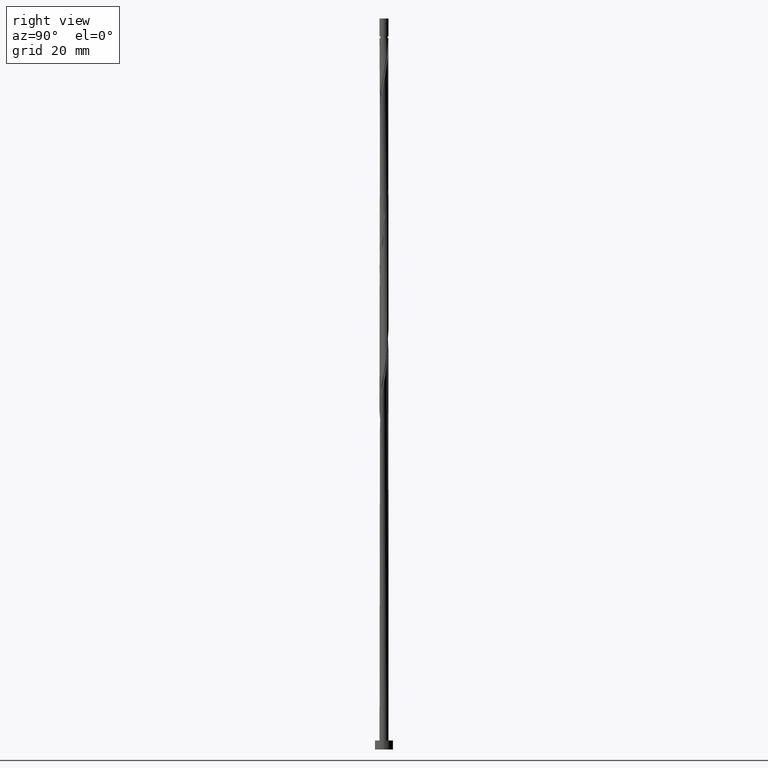
[diagram: clean part render]
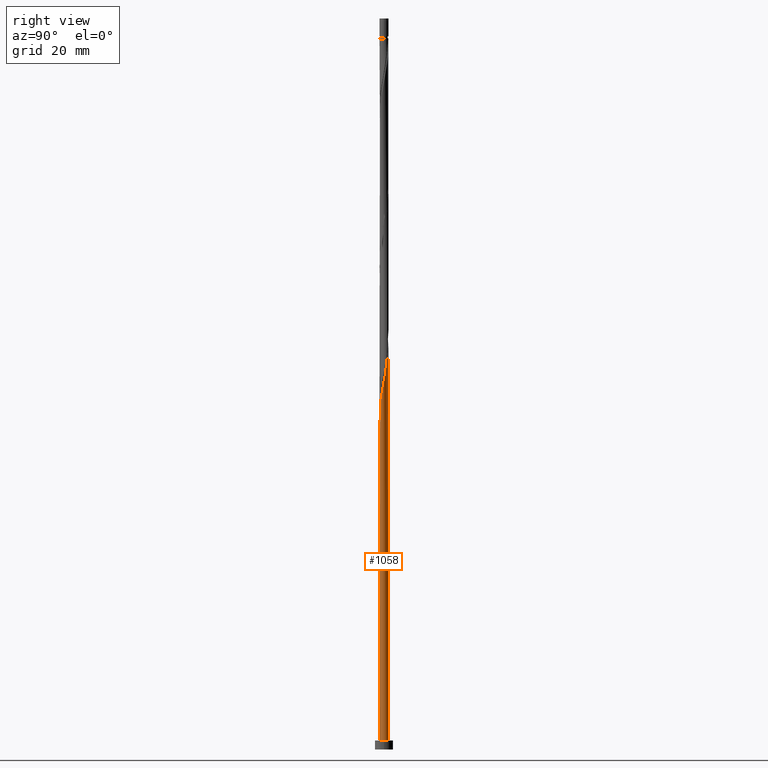
[diagram: same view with one face highlighted and labeled with its STEP entity id]
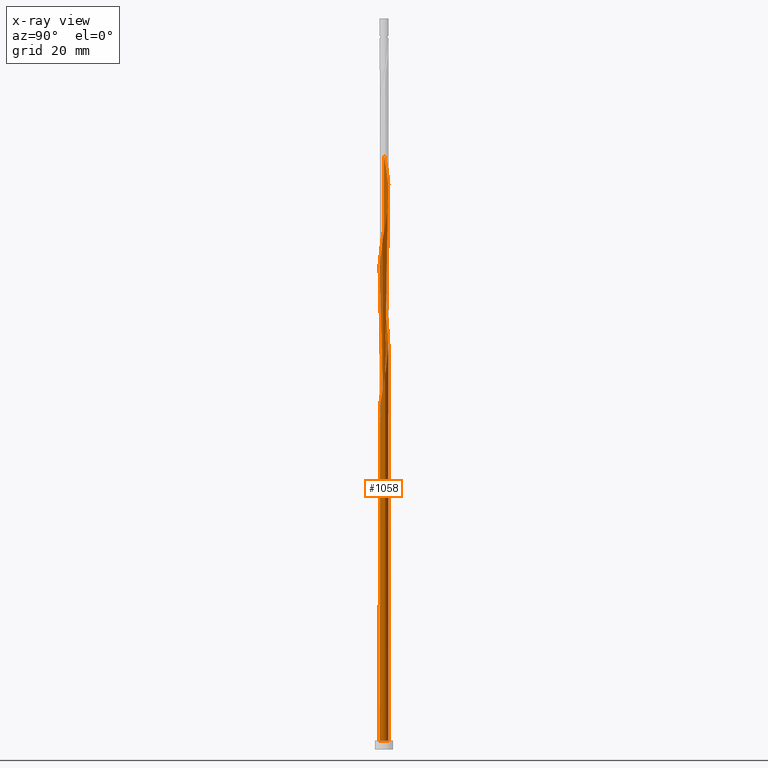
[diagram: x-ray of the same camera — body ghosted, the highlighted face saturated]
A machine part, right view. The second image highlights one B-rep face of the part: STEP entity #1058.
The next image is the same camera in x-ray: the body ghosted, the highlighted face saturated — about 0% of this face is hidden behind the body in this view.
In plain terms, the highlighted cylindrical surface (bore or boss wall) has radius 1 mm, axis along (-0, -0, -1).
Its self-contained STEP definition (entity closure, byte-faithful):
#1 = CARTESIAN_POINT ( 'NONE',  ( -0.4458594766673660836, 0.8951029700910976272, 92.36037733093021984 ) ) ;
#8 = CARTESIAN_POINT ( 'NONE',  ( 0.6623368793961451617, -0.7492061519980853790, 110.4159328864857628 ) ) ;
#15 = CYLINDRICAL_SURFACE ( 'NONE', #1018, 1.000000000000000000 ) ;
#17 = CARTESIAN_POINT ( 'NONE',  ( -0.06997803978568012395, 1.006198516232634566, 90.27704399759687703 ) ) ;
#31 = CARTESIAN_POINT ( 'NONE',  ( -1.000000000000000000, 0.000000000000000000, 2.000000000000000000 ) ) ;
#55 = CARTESIAN_POINT ( 'NONE',  ( -0.1989974874213289724, 0.9799999999999999822, 57.63815510870801262 ) ) ;
#102 = CARTESIAN_POINT ( 'NONE',  ( -1.000000000000000000, 0.000000000000000000, 162.0000000000000000 ) ) ;
#114 = CARTESIAN_POINT ( 'NONE',  ( -0.06142585173357485023, -0.9981116494354761448, 72.91593288648579119 ) ) ;
#121 = CARTESIAN_POINT ( 'NONE',  ( -0.1928297432528305599, -0.9900247826383185012, 72.22148844204133411 ) ) ;
#127 = CARTESIAN_POINT ( 'NONE',  ( -0.8364044564148299665, 0.5637020182777556787, 63.88815510870801972 ) ) ;
#128 = CARTESIAN_POINT ( 'NONE',  ( 0.5637020182777549016, -0.8364044564148300775, 109.7214884420413483 ) ) ;
#136 = CARTESIAN_POINT ( 'NONE',  ( -0.6620078475813414576, -0.7609717405145353109, 102.7770439975968912 ) ) ;
#144 = CARTESIAN_POINT ( 'NONE',  ( 0.06997803978568077621, -1.006198516232634566, 73.61037733093021984 ) ) ;
#158 = ORIENTED_EDGE ( 'NONE', *, *, #1098, .T. ) ;
#172 = CARTESIAN_POINT ( 'NONE',  ( 0.1928297432528310595, 0.9900247826383182792, 122.2214884420413199 ) ) ;
#174 = CIRCLE ( 'NONE', #410, 1.000000000000000000 ) ;
#178 = ORIENTED_EDGE ( 'NONE', *, *, #434, .F. ) ;
#191 = CARTESIAN_POINT ( 'NONE',  ( -0.9482036394194143236, 0.3176631206038548760, 129.8603773309301914 ) ) ;
#197 = ORIENTED_EDGE ( 'NONE', *, *, #981, .T. ) ;
#198 = CARTESIAN_POINT ( 'NONE',  ( -0.9900247826383185012, 0.1928297432528304767, 63.88815510870802683 ) ) ;
#203 = VECTOR ( 'NONE', #955, 1000.000000000000000 ) ;
#205 = CARTESIAN_POINT ( 'NONE',  ( -0.5637020182777554567, 0.8364044564148299665, 59.72148844204136964 ) ) ;
#206 = DIRECTION ( 'NONE',  ( -0.000000000000000000, -0.000000000000000000, -1.000000000000000000 ) ) ;
#219 = ORIENTED_EDGE ( 'NONE', *, *, #1271, .F. ) ;
#229 = DIRECTION ( 'NONE',  ( 1.117039367744582894E-28, -1.734723475976785637E-14, -1.000000000000000000 ) ) ;
#233 = CARTESIAN_POINT ( 'NONE',  ( -0.9063824962005110342, 0.4424964979548792754, 62.49926621981911268 ) ) ;
#239 = DIRECTION ( 'NONE',  ( 0.000000000000000000, 0.000000000000000000, 1.000000000000000000 ) ) ;
#241 = CARTESIAN_POINT ( 'NONE',  ( -0.3176631206038550426, -0.9482036394194143236, 104.8603773309302341 ) ) ;
#247 = CARTESIAN_POINT ( 'NONE',  ( 0.9799999999999999822, 0.1989974874213289169, 82.63815510870801972 ) ) ;
#251 = CARTESIAN_POINT ( 'NONE',  ( -0.4424964979548796640, -0.9063824962005109231, 104.1659328864857912 ) ) ;
#258 = CARTESIAN_POINT ( 'NONE',  ( -0.9538014837673660651, -0.3280169350569769326, 66.66593288648579119 ) ) ;
#265 = ORIENTED_EDGE ( 'NONE', *, *, #580, .F. ) ;
#268 = CARTESIAN_POINT ( 'NONE',  ( -0.8951029700910976272, -0.4458594766673660281, 67.36037733093021984 ) ) ;
#276 = CARTESIAN_POINT ( 'NONE',  ( 0.3176631206038552091, 0.9482036394194142126, 121.5270439975968628 ) ) ;
#283 = CARTESIAN_POINT ( 'NONE',  ( -0.4458594766673660836, 0.8951029700910976272, 125.6937106642635484 ) ) ;
#284 = EDGE_CURVE ( 'NONE', #919, #676, #174, .T. ) ;
#288 = EDGE_LOOP ( 'NONE', ( #178, #1545, #1310, #158, #1318, #265, #219, #197, #907 ) ) ;
#295 = CARTESIAN_POINT ( 'NONE',  ( 0.9981116494354761448, -0.06142585173357540534, 114.5825995531524342 ) ) ;
#331 = LINE ( 'NONE', #1072, #203 ) ;
#349 = CARTESIAN_POINT ( 'NONE',  ( -0.4458594766673660836, 0.8951029700910976272, 59.02704399759688414 ) ) ;
#352 = CARTESIAN_POINT ( 'NONE',  ( 0.000000000000000000, 0.000000000000000000, 2.000000000000000000 ) ) ;
#356 = AXIS2_PLACEMENT_3D ( 'NONE', #471, #229, #589 ) ;
#357 = CARTESIAN_POINT ( 'NONE',  ( -1.000000000000001110, 0.1005037815259254841, 66.50162872806212988 ) ) ;
#364 = CARTESIAN_POINT ( 'NONE',  ( 0.4424964979548797195, 0.9063824962005108121, 87.49926621981910557 ) ) ;
#369 = CARTESIAN_POINT ( 'NONE',  ( 0.06997803978568077621, -1.006198516232634566, 106.9437106642635626 ) ) ;
#373 = CARTESIAN_POINT ( 'NONE',  ( -0.9900247826383185012, 0.1928297432528304767, 97.22148844204134832 ) ) ;
#381 = CARTESIAN_POINT ( 'NONE',  ( -0.5522521727681102277, -0.8336771183575231170, 70.13815510870800551 ) ) ;
#390 = CARTESIAN_POINT ( 'NONE',  ( 0.7492061519980858231, 0.6623368793961449397, 85.41593288648576277 ) ) ;
#410 = AXIS2_PLACEMENT_3D ( 'NONE', #1368, #239, #747 ) ;
#431 = CARTESIAN_POINT ( 'NONE',  ( 0.9799999999999999822, 0.1989974874213289169, 115.9714884420413199 ) ) ;
#434 = EDGE_CURVE ( 'NONE', #1548, #993, #331, .T. ) ;
#438 = CARTESIAN_POINT ( 'NONE',  ( -0.1989974874213288614, 0.9799999999999999822, 124.3048217753746485 ) ) ;
#458 = CARTESIAN_POINT ( 'NONE',  ( -0.1928297432528304767, 0.9900247826383182792, 59.72148844204133411 ) ) ;
#466 = CARTESIAN_POINT ( 'NONE',  ( 0.000000000000000000, 0.000000000000000000, 162.0000000000000000 ) ) ;
#471 = CARTESIAN_POINT ( 'NONE',  ( 0.000000000000000000, 0.000000000000000000, 57.63815510870802683 ) ) ;
#477 = DIRECTION ( 'NONE',  ( 1.000000000000000000, 0.000000000000000000, 0.000000000000000000 ) ) ;
#482 = CARTESIAN_POINT ( 'NONE',  ( -0.7609717405145354219, 0.6620078475813414576, 94.44371066426359107 ) ) ;
#488 = CARTESIAN_POINT ( 'NONE',  ( -0.9482036394194143236, 0.3176631206038548760, 96.52704399759689124 ) ) ;
#494 = CARTESIAN_POINT ( 'NONE',  ( -0.9799999999999999822, -0.1989974874213290001, 99.30482177537466271 ) ) ;
#500 = CIRCLE ( 'NONE', #562, 1.000000000000000000 ) ;
#502 = CARTESIAN_POINT ( 'NONE',  ( 0.1989974874213295275, 0.9800000000000004263, 57.63815510870800551 ) ) ;
#503 = CARTESIAN_POINT ( 'NONE',  ( -0.6623368793961452727, 0.7492061519980853790, 93.74926621981909136 ) ) ;
#512 = CARTESIAN_POINT ( 'NONE',  ( -0.8364044564148300775, -0.5637020182777552346, 101.3881551087080339 ) ) ;
#562 = AXIS2_PLACEMENT_3D ( 'NONE', #352, #1612, #477 ) ;
#580 = EDGE_CURVE ( 'NONE', #657, #676, #1207, .T. ) ;
#589 = DIRECTION ( 'NONE',  ( 0.000000000000000000, 1.000000000000000000, -1.387778780781445676E-14 ) ) ;
#599 = CARTESIAN_POINT ( 'NONE',  ( -0.9799999999999999822, -0.1989974874213290001, 65.97148844204133411 ) ) ;
#602 = DIRECTION ( 'NONE',  ( -1.000000000000000000, 0.000000000000000000, 0.000000000000000000 ) ) ;
#611 = CARTESIAN_POINT ( 'NONE',  ( -0.9981116494354761448, 0.06142585173357480860, 97.91593288648576277 ) ) ;
#617 = CARTESIAN_POINT ( 'NONE',  ( 0.5522521727681103387, 0.8336771183575228950, 86.80482177537469113 ) ) ;
#624 = CARTESIAN_POINT ( 'NONE',  ( 1.006198516232634566, 0.06997803978568023497, 81.94371066426356265 ) ) ;
#633 = CARTESIAN_POINT ( 'NONE',  ( -0.8364044564148300775, -0.5637020182777552346, 68.05482177537467692 ) ) ;
#641 = CARTESIAN_POINT ( 'NONE',  ( 0.7609717405145353109, -0.6620078475813414576, 77.77704399759687703 ) ) ;
#649 = CARTESIAN_POINT ( 'NONE',  ( 0.8336771183575227839, -0.5522521727681107828, 111.8048217753746627 ) ) ;
#657 = VERTEX_POINT ( 'NONE', #1139 ) ;
#662 = CARTESIAN_POINT ( 'NONE',  ( -1.000000000000001110, 0.03074195165767283980, 131.4114247654697749 ) ) ;
#671 = CARTESIAN_POINT ( 'NONE',  ( -0.7609717405145354219, 0.6620078475813414576, 127.7770439975969339 ) ) ;
#676 = VERTEX_POINT ( 'NONE', #31 ) ;
#682 = CARTESIAN_POINT ( 'NONE',  ( 0.9538014837673660651, 0.3280169350569768771, 116.6659328864858054 ) ) ;
#712 = CARTESIAN_POINT ( 'NONE',  ( -0.4424964979548792199, 0.9063824962005113672, 61.11037733093024116 ) ) ;
#721 = CARTESIAN_POINT ( 'NONE',  ( -0.6620078475813414576, 0.7609717405145354219, 62.49926621981911268 ) ) ;
#724 = CARTESIAN_POINT ( 'NONE',  ( -0.9800000000000004263, 0.1989974874213291667, 65.97148844204134832 ) ) ;
#735 = CARTESIAN_POINT ( 'NONE',  ( -0.1928297432528305599, -0.9900247826383185012, 105.5548217753746769 ) ) ;
#740 = CARTESIAN_POINT ( 'NONE',  ( 0.3280169350569769326, -0.9538014837673660651, 108.3325995531524626 ) ) ;
#747 = DIRECTION ( 'NONE',  ( 1.000000000000000000, 0.000000000000000000, 0.000000000000000000 ) ) ;
#749 = CARTESIAN_POINT ( 'NONE',  ( 0.4458594766673658061, -0.8951029700910977382, 109.0270439975968912 ) ) ;
#758 = CARTESIAN_POINT ( 'NONE',  ( -0.5637020182777554567, 0.8364044564148299665, 93.05482177537467692 ) ) ;
#766 = CARTESIAN_POINT ( 'NONE',  ( 0.9538014837673660651, 0.3280169350569768771, 83.33259955315243417 ) ) ;
#777 = CARTESIAN_POINT ( 'NONE',  ( 0.9063824962005108121, -0.4424964979548796085, 112.4992662198191056 ) ) ;
#790 = VERTEX_POINT ( 'NONE', #1582 ) ;
#795 = CARTESIAN_POINT ( 'NONE',  ( 0.6620078475813419017, 0.7609717405145348668, 119.4437106642635484 ) ) ;
#830 = CARTESIAN_POINT ( 'NONE',  ( -0.9981116494354761448, 0.06142585173357480860, 64.58259955315244838 ) ) ;
#838 = CARTESIAN_POINT ( 'NONE',  ( -0.9482036394194143236, 0.3176631206038548760, 63.19371066426357686 ) ) ;
#853 = CARTESIAN_POINT ( 'NONE',  ( 0.8336771183575227839, -0.5522521727681107828, 78.47148844204134832 ) ) ;
#860 = CARTESIAN_POINT ( 'NONE',  ( 0.1989974874213289169, -0.9799999999999999822, 107.6381551087080055 ) ) ;
#864 = CARTESIAN_POINT ( 'NONE',  ( -0.5522521727681105608, 0.8336771183575236721, 61.80482177537466271 ) ) ;
#865 = CARTESIAN_POINT ( 'NONE',  ( 0.9900247826383182792, -0.1928297432528310040, 80.55482177537469113 ) ) ;
#872 = CARTESIAN_POINT ( 'NONE',  ( 0.9063824962005108121, -0.4424964979548796085, 79.16593288648579119 ) ) ;
#881 = CARTESIAN_POINT ( 'NONE',  ( 0.3280169350569769326, -0.9538014837673660651, 74.99926621981913399 ) ) ;
#892 = CARTESIAN_POINT ( 'NONE',  ( -1.000000000000001110, 3.962752877559323253E-16, 131.5745884534979382 ) ) ;
#902 = CARTESIAN_POINT ( 'NONE',  ( 0.06142585173357546086, 0.9981116494354761448, 122.9159328864857770 ) ) ;
#907 = ORIENTED_EDGE ( 'NONE', *, *, #1029, .F. ) ;
#911 = CARTESIAN_POINT ( 'NONE',  ( 0.8951029700910977382, 0.4458594766673656951, 117.3603773309302198 ) ) ;
#919 = VERTEX_POINT ( 'NONE', #1356 ) ;
#927 =( BOUNDED_CURVE ( )  B_SPLINE_CURVE ( 2, ( #1457, #1096, #599, #258, #268, #633, #1494, #1109, #381, #1400, #1508, #121, #114, #144, #1514, #881, #1125, #1232, #1376, #641, #853, #872, #1004, #865, #989, #624, #247, #766, #975, #1239, #390, #1225, #617, #364, #1392, #1369, #1523, #17, #1618, #1102, #1, #758, #503, #482, #1249, #983, #488, #373, #611, #1382, #494, #1116, #1501, #512, #995, #136, #1259, #251, #241, #735, #1624, #369, #860, #740, #749, #128, #8, #1032, #649, #777, #1053, #1551, #295, #1042, #431, #682, #911, #1429, #1012, #795, #1291, #1450, #276, #172, #902, #1568, #438, #1532, #283, #932, #1155, #671, #1022, #1540, #191, #1411, #1269, #662, #892 ),
 .UNSPECIFIED., .F., .T. ) 
 B_SPLINE_CURVE_WITH_KNOTS ( ( 3, 2, 2, 2, 2, 2, 2, 2, 2, 2, 2, 2, 2, 2, 2, 2, 2, 2, 2, 2, 2, 2, 2, 2, 2, 2, 2, 2, 2, 2, 2, 2, 2, 2, 2, 2, 2, 2, 2, 2, 2, 2, 2, 2, 2, 2, 2, 2, 2, 3 ),
 ( 0.05453176698144612117, 0.06250000000000000000, 0.07291666666666662966, 0.08333333333333337034, 0.09375000000000000000, 0.1041666666666666297, 0.1145833333333333703, 0.1250000000000000000, 0.1354166666666666297, 0.1458333333333333703, 0.1562500000000000000, 0.1666666666666666297, 0.1770833333333333703, 0.1875000000000000000, 0.1979166666666666297, 0.2083333333333333703, 0.2187500000000000000, 0.2291666666666666297, 0.2395833333333333703, 0.2500000000000000000, 0.2604166666666666297, 0.2708333333333333703, 0.2812500000000000000, 0.2916666666666666297, 0.3020833333333333703, 0.3125000000000000000, 0.3229166666666666297, 0.3333333333333333703, 0.3437500000000000000, 0.3541666666666666297, 0.3645833333333333703, 0.3750000000000000000, 0.3854166666666666297, 0.3958333333333333703, 0.4062500000000000000, 0.4166666666666666297, 0.4270833333333333703, 0.4375000000000000000, 0.4479166666666666297, 0.4583333333333333703, 0.4687500000000000000, 0.4791666666666666297, 0.4895833333333333703, 0.5000000000000000000, 0.5104166666666667407, 0.5208333333333332593, 0.5312500000000000000, 0.5416666666666667407, 0.5520833333333332593, 0.5545317669814459061 ),
 .UNSPECIFIED. ) 
 CURVE ( )  GEOMETRIC_REPRESENTATION_ITEM ( )  RATIONAL_B_SPLINE_CURVE ( ( 0.9062941362546441670, 0.9031415850403481382, 0.9090909090909238266, 0.9013135103398420833, 0.9090909090909238266, 0.9013135103398420833, 0.9090909090909238266, 0.9013135103398420833, 0.9090909090909238266, 0.9013135103398420833, 0.9090909090909238266, 0.9013135103398420833, 0.9090909090909238266, 0.9013135103398420833, 0.9090909090909238266, 0.9013135103398420833, 0.9090909090909238266, 0.9013135103398420833, 0.9090909090909238266, 0.9013135103398420833, 0.9090909090909238266, 0.9013135103398420833, 0.9090909090909238266, 0.9013135103398420833, 0.9090909090909238266, 0.9013135103398420833, 0.9090909090909238266, 0.9013135103398420833, 0.9090909090909238266, 0.9013135103398420833, 0.9090909090909238266, 0.9013135103398420833, 0.9090909090909238266, 0.9013135103398420833, 0.9090909090909238266, 0.9013135103398420833, 0.9090909090909238266, 0.9013135103398420833, 0.9090909090909238266, 0.9013135103398420833, 0.9090909090909238266, 0.9013135103398420833, 0.9090909090909238266, 0.9013135103398420833, 0.9090909090909238266, 0.9013135103398420833, 0.9090909090909238266, 0.9013135103398420833, 0.9090909090909238266, 0.9013135103398420833, 0.9090909090909238266, 0.9013135103398420833, 0.9090909090909238266, 0.9013135103398420833, 0.9090909090909238266, 0.9013135103398420833, 0.9090909090909238266, 0.9013135103398420833, 0.9090909090909238266, 0.9013135103398420833, 0.9090909090909238266, 0.9013135103398420833, 0.9090909090909238266, 0.9013135103398420833, 0.9090909090909238266, 0.9013135103398420833, 0.9090909090909238266, 0.9013135103398420833, 0.9090909090909238266, 0.9013135103398420833, 0.9090909090909238266, 0.9013135103398420833, 0.9090909090909238266, 0.9013135103398420833, 0.9090909090909238266, 0.9013135103398420833, 0.9090909090909238266, 0.9013135103398420833, 0.9090909090909238266, 0.9013135103398420833, 0.9090909090909238266, 0.9013135103398420833, 0.9090909090909238266, 0.9013135103398420833, 0.9090909090909238266, 0.9013135103398420833, 0.9090909090909238266, 0.9013135103398420833, 0.9090909090909238266, 0.9013135103398420833, 0.9090909090909238266, 0.9013135103398420833, 0.9090909090909238266, 0.9013135103398420833, 0.9090909090909238266, 0.9013135103398420833, 0.9090909090909238266, 0.9072628343904177717, 0.9062941362546443891 ) ) 
 REPRESENTATION_ITEM ( '' )  );
#932 = CARTESIAN_POINT ( 'NONE',  ( -0.5637020182777554567, 0.8364044564148299665, 126.3881551087080197 ) ) ;
#941 = CARTESIAN_POINT ( 'NONE',  ( -0.1989974874213289446, 0.9799999999999999822, 57.63815510870801262 ) ) ;
#955 = DIRECTION ( 'NONE',  ( -0.000000000000000000, -0.000000000000000000, -1.000000000000000000 ) ) ;
#960 = CARTESIAN_POINT ( 'NONE',  ( -0.7609717405145354219, 0.6620078475813414576, 61.11037733093021274 ) ) ;
#963 = DIRECTION ( 'NONE',  ( -0.000000000000000000, -0.000000000000000000, -1.000000000000000000 ) ) ;
#975 = CARTESIAN_POINT ( 'NONE',  ( 0.8951029700910977382, 0.4458594766673656951, 84.02704399759689124 ) ) ;
#981 = EDGE_CURVE ( 'NONE', #1438, #790, #1287, .T. ) ;
#983 = CARTESIAN_POINT ( 'NONE',  ( -0.9063824962005110342, 0.4424964979548792754, 95.83259955315244838 ) ) ;
#989 = CARTESIAN_POINT ( 'NONE',  ( 0.9981116494354761448, -0.06142585173357540534, 81.24926621981911978 ) ) ;
#993 = VERTEX_POINT ( 'NONE', #1345 ) ;
#994 = FACE_OUTER_BOUND ( 'NONE', #288, .T. ) ;
#995 = CARTESIAN_POINT ( 'NONE',  ( -0.7492061519980853790, -0.6623368793961452727, 102.0825995531524484 ) ) ;
#1004 = CARTESIAN_POINT ( 'NONE',  ( 0.9482036394194143236, -0.3176631206038551536, 79.86037733093023405 ) ) ;
#1012 = CARTESIAN_POINT ( 'NONE',  ( 0.7492061519980858231, 0.6623368793961449397, 118.7492662198191056 ) ) ;
#1018 = AXIS2_PLACEMENT_3D ( 'NONE', #466, #963, #602 ) ;
#1022 = CARTESIAN_POINT ( 'NONE',  ( -0.8336771183575231170, 0.5522521727681102277, 128.4714884420413057 ) ) ;
#1029 = EDGE_CURVE ( 'NONE', #993, #790, #1089, .T. ) ;
#1032 = CARTESIAN_POINT ( 'NONE',  ( 0.7609717405145353109, -0.6620078475813414576, 111.1103773309302198 ) ) ;
#1042 = CARTESIAN_POINT ( 'NONE',  ( 1.006198516232634566, 0.06997803978568023497, 115.2770439975969055 ) ) ;
#1053 = CARTESIAN_POINT ( 'NONE',  ( 0.9482036394194143236, -0.3176631206038551536, 113.1937106642635626 ) ) ;
#1058 = ADVANCED_FACE ( 'NONE', ( #994 ), #15, .T. ) ;
#1072 = CARTESIAN_POINT ( 'NONE',  ( -1.000000000000000000, 0.000000000000000000, 162.0000000000000000 ) ) ;
#1084 = CARTESIAN_POINT ( 'NONE',  ( -0.06142585173357461431, 0.9981116494354765889, 59.02704399759690546 ) ) ;
#1089 =( BOUNDED_CURVE ( )  B_SPLINE_CURVE ( 2, ( #1486, #357, #724, #1248, #1339, #127, #1124, #721, #864, #712, #1210, #458, #1084, #1475, #502 ),
 .UNSPECIFIED., .F., .T. ) 
 B_SPLINE_CURVE_WITH_KNOTS ( ( 3, 2, 2, 2, 2, 2, 2, 3 ),
 ( 0.9295317669814462391, 0.9375000000000000000, 0.9479166666666666297, 0.9583333333333333703, 0.9687500000000000000, 0.9791666666666666297, 0.9895833333333333703, 1.000000000000000000 ),
 .UNSPECIFIED. ) 
 CURVE ( )  GEOMETRIC_REPRESENTATION_ITEM ( )  RATIONAL_B_SPLINE_CURVE ( ( 0.9062941362546340640, 0.9031415850403382573, 0.9090909090909136125, 0.9013135103398322023, 0.9090909090909136125, 0.9013135103398322023, 0.9090909090909136125, 0.9013135103398322023, 0.9090909090909136125, 0.9013135103398322023, 0.9090909090909136125, 0.9013135103398322023, 0.9090909090909136125, 0.9013135103398322023, 0.9090909090909136125 ) ) 
 REPRESENTATION_ITEM ( '' )  );
#1096 = CARTESIAN_POINT ( 'NONE',  ( -1.000000000000001332, -0.1005037815259237077, 65.44134815602053834 ) ) ;
#1098 = EDGE_CURVE ( 'NONE', #676, #919, #500, .T. ) ;
#1102 = CARTESIAN_POINT ( 'NONE',  ( -0.3280169350569769882, 0.9538014837673658430, 91.66593288648579119 ) ) ;
#1109 = CARTESIAN_POINT ( 'NONE',  ( -0.6620078475813414576, -0.7609717405145353109, 69.44371066426354844 ) ) ;
#1116 = CARTESIAN_POINT ( 'NONE',  ( -0.9538014837673660651, -0.3280169350569769326, 99.99926621981913399 ) ) ;
#1124 = CARTESIAN_POINT ( 'NONE',  ( -0.7492061519980854900, 0.6623368793961456058, 63.19371066426357686 ) ) ;
#1125 = CARTESIAN_POINT ( 'NONE',  ( 0.4458594766673658061, -0.8951029700910977382, 75.69371066426356265 ) ) ;
#1139 = CARTESIAN_POINT ( 'NONE',  ( -1.000000000000001332, 5.981513777448037192E-17, 64.90792178683125258 ) ) ;
#1155 = CARTESIAN_POINT ( 'NONE',  ( -0.6623368793961452727, 0.7492061519980853790, 127.0825995531524342 ) ) ;
#1207 = LINE ( 'NONE', #102, #1233 ) ;
#1210 = CARTESIAN_POINT ( 'NONE',  ( -0.3176631206038548760, 0.9482036394194148787, 60.41593288648579119 ) ) ;
#1225 = CARTESIAN_POINT ( 'NONE',  ( 0.6620078475813419017, 0.7609717405145348668, 86.11037733093021984 ) ) ;
#1232 = CARTESIAN_POINT ( 'NONE',  ( 0.5637020182777549016, -0.8364044564148300775, 76.38815510870800551 ) ) ;
#1233 = VECTOR ( 'NONE', #206, 1000.000000000000000 ) ;
#1239 = CARTESIAN_POINT ( 'NONE',  ( 0.8364044564148301886, 0.5637020182777549016, 84.72148844204133411 ) ) ;
#1248 = CARTESIAN_POINT ( 'NONE',  ( -0.9538014837673659541, 0.3280169350569773212, 65.27704399759690546 ) ) ;
#1249 = CARTESIAN_POINT ( 'NONE',  ( -0.8336771183575231170, 0.5522521727681102277, 95.13815510870801972 ) ) ;
#1255 =( BOUNDED_CURVE ( )  B_SPLINE_CURVE ( 2, ( #941, #1585, #349, #205, #1361, #960, #1328, #233, #838, #198, #830, #1463, #1350 ),
 .UNSPECIFIED., .F., .T. ) 
 B_SPLINE_CURVE_WITH_KNOTS ( ( 3, 2, 2, 2, 2, 2, 3 ),
 ( 0.000000000000000000, 0.01041666666666662966, 0.02083333333333337034, 0.03125000000000000000, 0.04166666666666662966, 0.05208333333333337034, 0.05453176698144612117 ),
 .UNSPECIFIED. ) 
 CURVE ( )  GEOMETRIC_REPRESENTATION_ITEM ( )  RATIONAL_B_SPLINE_CURVE ( ( 0.9090909090909238266, 0.9013135103398420833, 0.9090909090909238266, 0.9013135103398420833, 0.9090909090909238266, 0.9013135103398420833, 0.9090909090909238266, 0.9013135103398420833, 0.9090909090909238266, 0.9013135103398420833, 0.9090909090909238266, 0.9072628343904176607, 0.9062941362546441670 ) ) 
 REPRESENTATION_ITEM ( '' )  );
#1259 = CARTESIAN_POINT ( 'NONE',  ( -0.5522521727681102277, -0.8336771183575231170, 103.4714884420413341 ) ) ;
#1269 = CARTESIAN_POINT ( 'NONE',  ( -0.9981116494354761448, 0.06142585173357480860, 131.2492662198191056 ) ) ;
#1271 = EDGE_CURVE ( 'NONE', #1438, #657, #1255, .T. ) ;
#1287 = CIRCLE ( 'NONE', #356, 1.000000000000000000 ) ;
#1291 = CARTESIAN_POINT ( 'NONE',  ( 0.5522521727681103387, 0.8336771183575228950, 120.1381551087079771 ) ) ;
#1310 = ORIENTED_EDGE ( 'NONE', *, *, #580, .T. ) ;
#1318 = ORIENTED_EDGE ( 'NONE', *, *, #284, .T. ) ;
#1328 = CARTESIAN_POINT ( 'NONE',  ( -0.8336771183575231170, 0.5522521727681102277, 61.80482177537465560 ) ) ;
#1339 = CARTESIAN_POINT ( 'NONE',  ( -0.8951029700910979603, 0.4458594766673665277, 64.58259955315246259 ) ) ;
#1345 = CARTESIAN_POINT ( 'NONE',  ( -1.000000000000001332, 2.654296738742595609E-16, 67.03505509725142986 ) ) ;
#1350 = CARTESIAN_POINT ( 'NONE',  ( -1.000000000000001332, 5.981513777448037192E-17, 64.90792178683125258 ) ) ;
#1356 = CARTESIAN_POINT ( 'NONE',  ( 1.000000000000000000, 0.000000000000000000, 2.000000000000000000 ) ) ;
#1361 = CARTESIAN_POINT ( 'NONE',  ( -0.6623368793961452727, 0.7492061519980853790, 60.41593288648575566 ) ) ;
#1368 = CARTESIAN_POINT ( 'NONE',  ( 0.000000000000000000, 0.000000000000000000, 2.000000000000000000 ) ) ;
#1369 = CARTESIAN_POINT ( 'NONE',  ( 0.1928297432528310595, 0.9900247826383182792, 88.88815510870799130 ) ) ;
#1376 = CARTESIAN_POINT ( 'NONE',  ( 0.6623368793961451617, -0.7492061519980853790, 77.08259955315246259 ) ) ;
#1382 = CARTESIAN_POINT ( 'NONE',  ( -1.006198516232634566, -0.06997803978568098437, 98.61037733093023405 ) ) ;
#1392 = CARTESIAN_POINT ( 'NONE',  ( 0.3176631206038552091, 0.9482036394194142126, 88.19371066426356265 ) ) ;
#1400 = CARTESIAN_POINT ( 'NONE',  ( -0.4424964979548796640, -0.9063824962005109231, 70.83259955315246259 ) ) ;
#1407 = EDGE_CURVE ( 'NONE', #657, #1548, #927, .T. ) ;
#1411 = CARTESIAN_POINT ( 'NONE',  ( -0.9900247826383185012, 0.1928297432528304767, 130.5548217753747053 ) ) ;
#1429 = CARTESIAN_POINT ( 'NONE',  ( 0.8364044564148301886, 0.5637020182777549016, 118.0548217753747053 ) ) ;
#1438 = VERTEX_POINT ( 'NONE', #55 ) ;
#1450 = CARTESIAN_POINT ( 'NONE',  ( 0.4424964979548797195, 0.9063824962005108121, 120.8325995531524342 ) ) ;
#1457 = CARTESIAN_POINT ( 'NONE',  ( -1.000000000000001332, 5.981513777448037192E-17, 64.90792178683125258 ) ) ;
#1463 = CARTESIAN_POINT ( 'NONE',  ( -1.000000000000001332, 0.03074195165767120916, 64.74475809880310351 ) ) ;
#1475 = CARTESIAN_POINT ( 'NONE',  ( 0.06997803978568116479, 1.006198516232634566, 58.33259955315244127 ) ) ;
#1486 = CARTESIAN_POINT ( 'NONE',  ( -1.000000000000001332, 2.654296738742595609E-16, 67.03505509725142986 ) ) ;
#1494 = CARTESIAN_POINT ( 'NONE',  ( -0.7492061519980853790, -0.6623368793961452727, 68.74926621981910557 ) ) ;
#1501 = CARTESIAN_POINT ( 'NONE',  ( -0.8951029700910976272, -0.4458594766673660281, 100.6937106642635484 ) ) ;
#1508 = CARTESIAN_POINT ( 'NONE',  ( -0.3176631206038550426, -0.9482036394194143236, 71.52704399759690546 ) ) ;
#1514 = CARTESIAN_POINT ( 'NONE',  ( 0.1989974874213289169, -0.9799999999999999822, 74.30482177537469113 ) ) ;
#1523 = CARTESIAN_POINT ( 'NONE',  ( 0.06142585173357546086, 0.9981116494354761448, 89.58259955315243417 ) ) ;
#1532 = CARTESIAN_POINT ( 'NONE',  ( -0.3280169350569769882, 0.9538014837673658430, 124.9992662198191198 ) ) ;
#1540 = CARTESIAN_POINT ( 'NONE',  ( -0.9063824962005110342, 0.4424964979548792754, 129.1659328864857912 ) ) ;
#1545 = ORIENTED_EDGE ( 'NONE', *, *, #1407, .F. ) ;
#1548 = VERTEX_POINT ( 'NONE', #1560 ) ;
#1551 = CARTESIAN_POINT ( 'NONE',  ( 0.9900247826383182792, -0.1928297432528310040, 113.8881551087080055 ) ) ;
#1560 = CARTESIAN_POINT ( 'NONE',  ( -1.000000000000001110, 3.962752877559323253E-16, 131.5745884534979382 ) ) ;
#1568 = CARTESIAN_POINT ( 'NONE',  ( -0.06997803978568012395, 1.006198516232634566, 123.6103773309302198 ) ) ;
#1582 = CARTESIAN_POINT ( 'NONE',  ( 0.1989974874213294997, 0.9800000000000004263, 57.63815510870801262 ) ) ;
#1585 = CARTESIAN_POINT ( 'NONE',  ( -0.3280169350569769882, 0.9538014837673658430, 58.33259955315245548 ) ) ;
#1612 = DIRECTION ( 'NONE',  ( 0.000000000000000000, 0.000000000000000000, 1.000000000000000000 ) ) ;
#1618 = CARTESIAN_POINT ( 'NONE',  ( -0.1989974874213288614, 0.9799999999999999822, 90.97148844204133411 ) ) ;
#1624 = CARTESIAN_POINT ( 'NONE',  ( -0.06142585173357485023, -0.9981116494354761448, 106.2492662198191198 ) ) ;